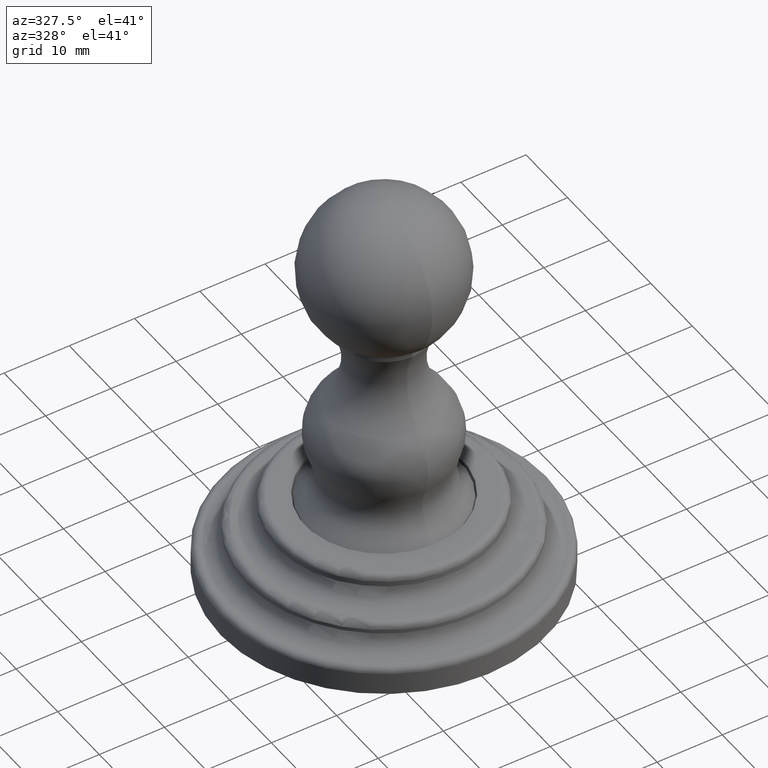
[diagram: clean part render]
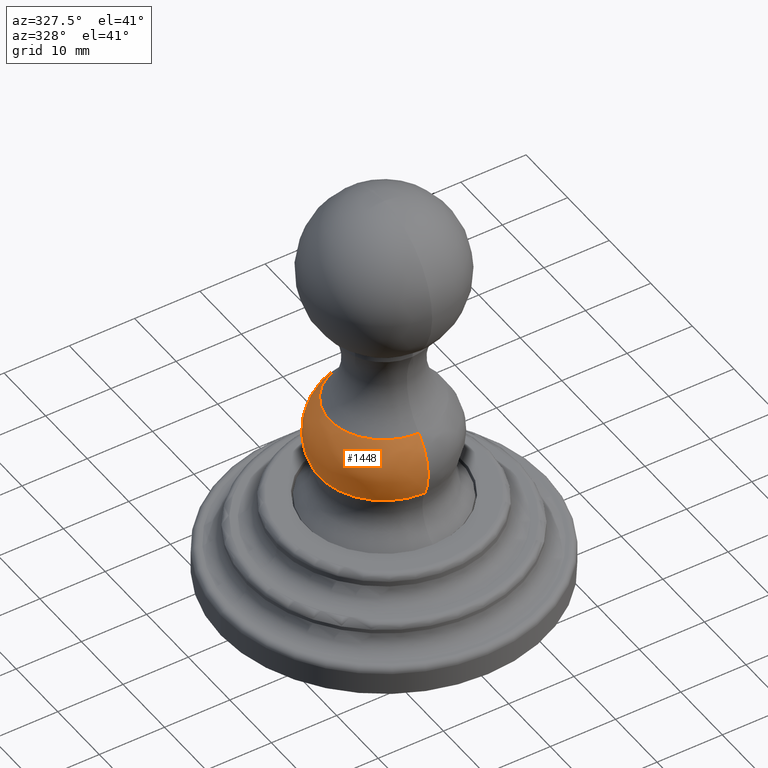
[diagram: same view with one face highlighted and labeled with its STEP entity id]
A machine part, auxiliary view. The second image highlights one B-rep face of the part: STEP entity #1448.
In plain terms, the highlighted face is a freeform B-spline surface patch.
Its self-contained STEP definition (entity closure, byte-faithful):
#572=CARTESIAN_POINT('',(0.E0,1.041910873487E-1,9.220305738123E-1));
#573=DIRECTION('',(1.E0,0.E0,0.E0));
#574=DIRECTION('',(0.E0,8.988088988744E-1,-4.383406931876E-1));
#575=AXIS2_PLACEMENT_3D('',#572,#573,#574);
#580=CARTESIAN_POINT('',(0.E0,-1.041910873487E-1,9.220305738123E-1));
#581=DIRECTION('',(-1.E0,0.E0,0.E0));
#582=DIRECTION('',(0.E0,-8.988088988744E-1,-4.383406931876E-1));
#583=AXIS2_PLACEMENT_3D('',#580,#581,#582);
#588=CARTESIAN_POINT('',(0.E0,0.E0,7.839705129660E-1));
#589=DIRECTION('',(0.E0,0.E0,1.E0));
#590=DIRECTION('',(0.E0,1.E0,0.E0));
#591=AXIS2_PLACEMENT_3D('',#588,#589,#590);
#612=CARTESIAN_POINT('',(0.E0,0.E0,1.142747808153E0));
#613=DIRECTION('',(0.E0,0.E0,1.E0));
#614=DIRECTION('',(0.E0,1.E0,0.E0));
#615=AXIS2_PLACEMENT_3D('',#612,#613,#614);
#743=CARTESIAN_POINT('',(0.E0,3.872805043167E-1,7.839705129660E-1));
#745=VERTEX_POINT('',#743);
#746=CARTESIAN_POINT('',(0.E0,3.288777599953E-1,1.142747808153E0));
#747=VERTEX_POINT('',#746);
#755=CARTESIAN_POINT('',(0.E0,-3.872805043167E-1,7.839705129660E-1));
#757=VERTEX_POINT('',#755);
#758=CARTESIAN_POINT('',(0.E0,-3.288777599953E-1,1.142747808153E0));
#759=VERTEX_POINT('',#758);
#1412=CARTESIAN_POINT('',(2.030517335353E-2,-3.227414884302E-1,
1.148208805471E0));
#1413=CARTESIAN_POINT('',(2.681549288007E-2,-4.262200540926E-1,
1.047729824582E0));
#1414=CARTESIAN_POINT('',(2.827208170864E-2,-4.493718705474E-1,
9.052233504963E-1));
#1415=CARTESIAN_POINT('',(2.409889000515E-2,-3.830408878742E-1,
7.770476561504E-1));
#1416=CARTESIAN_POINT('',(-1.783094859161E-1,-3.352372636298E-1,
1.148208805471E0));
#1417=CARTESIAN_POINT('',(-2.354797305486E-1,-4.427222707968E-1,
1.047729824582E0));
#1418=CARTESIAN_POINT('',(-2.482707370912E-1,-4.667704699736E-1,
9.052233504963E-1));
#1419=CARTESIAN_POINT('',(-2.116239351003E-1,-3.978713109798E-1,
7.770476561504E-1));
#1420=CARTESIAN_POINT('',(-3.233796042100E-1,-1.990073548255E-1,
1.148208805471E0));
#1421=CARTESIAN_POINT('',(-4.270627649059E-1,-2.628138264811E-1,
1.047729824582E0));
#1422=CARTESIAN_POINT('',(-4.502603565088E-1,-2.770895918142E-1,
9.052233504963E-1));
#1423=CARTESIAN_POINT('',(-3.837982260029E-1,-2.361888899275E-1,
7.770476561504E-1));
#1424=CARTESIAN_POINT('',(-3.233796042100E-1,0.E0,1.148208805471E0));
#1425=CARTESIAN_POINT('',(-4.270627649059E-1,0.E0,1.047729824582E0));
#1426=CARTESIAN_POINT('',(-4.502603565088E-1,0.E0,9.052233504963E-1));
#1427=CARTESIAN_POINT('',(-3.837982260029E-1,0.E0,7.770476561504E-1));
#1428=CARTESIAN_POINT('',(-3.233796042100E-1,1.990073548255E-1,
1.148208805471E0));
#1429=CARTESIAN_POINT('',(-4.270627649059E-1,2.628138264811E-1,
1.047729824582E0));
#1430=CARTESIAN_POINT('',(-4.502603565088E-1,2.770895918142E-1,
9.052233504963E-1));
#1431=CARTESIAN_POINT('',(-3.837982260029E-1,2.361888899275E-1,
7.770476561504E-1));
#1432=CARTESIAN_POINT('',(-1.783094859161E-1,3.352372636298E-1,
1.148208805471E0));
#1433=CARTESIAN_POINT('',(-2.354797305486E-1,4.427222707968E-1,
1.047729824582E0));
#1434=CARTESIAN_POINT('',(-2.482707370912E-1,4.667704699736E-1,
9.052233504963E-1));
#1435=CARTESIAN_POINT('',(-2.116239351003E-1,3.978713109798E-1,
7.770476561504E-1));
#1436=CARTESIAN_POINT('',(2.030517335353E-2,3.227414884302E-1,
1.148208805471E0));
#1437=CARTESIAN_POINT('',(2.681549288007E-2,4.262200540926E-1,
1.047729824582E0));
#1438=CARTESIAN_POINT('',(2.827208170864E-2,4.493718705474E-1,
9.052233504963E-1));
#1439=CARTESIAN_POINT('',(2.409889000515E-2,3.830408878742E-1,
7.770476561504E-1));
#1440=(BOUNDED_SURFACE()B_SPLINE_SURFACE(3,3,((#1412,#1413,#1414,#1415),(#1416,
#1417,#1418,#1419),(#1420,#1421,#1422,#1423),(#1424,#1425,#1426,#1427),(#1428,
#1429,#1430,#1431),(#1432,#1433,#1434,#1435),(#1436,#1437,#1438,#1439)),
.UNSPECIFIED.,.F.,.F.,.F.)B_SPLINE_SURFACE_WITH_KNOTS((4,3,4),(4,4),(0.E0,1.E0,
2.E0),(0.E0,1.E0),.UNSPECIFIED.)GEOMETRIC_REPRESENTATION_ITEM()RATIONAL_B_SPLINE_SURFACE(((1.317526105296E0,1.143841608227E0,1.143841608227E0,1.317526105296E0),(
1.040447823343E0,9.032895111105E-1,9.032895111105E-1,1.040447823343E0),(
1.040447823343E0,9.032895111105E-1,9.032895111105E-1,1.040447823343E0),(
1.317526105296E0,1.143841608227E0,1.143841608227E0,1.317526105296E0),(
1.040447823343E0,9.032895111105E-1,9.032895111105E-1,1.040447823343E0),(
1.040447823343E0,9.032895111105E-1,9.032895111105E-1,1.040447823343E0),(
1.317526105296E0,1.143841608227E0,1.143841608227E0,1.317526105296E0)))REPRESENTATION_ITEM('')SURFACE());
#1441=ORIENTED_EDGE('',*,*,#1390,.T.);
#1443=ORIENTED_EDGE('',*,*,#1442,.T.);
#1444=ORIENTED_EDGE('',*,*,#1393,.F.);
#1445=ORIENTED_EDGE('',*,*,#1316,.F.);
#1446=EDGE_LOOP('',(#1441,#1443,#1444,#1445));
#1447=FACE_OUTER_BOUND('',#1446,.F.);
#576=CIRCLE('',#575,3.149606299209E-1);
#584=CIRCLE('',#583,3.149606299209E-1);
#592=CIRCLE('',#591,3.872805043167E-1);
#616=CIRCLE('',#615,3.288777599953E-1);
#1316=EDGE_CURVE('',#745,#757,#592,.T.);
#1390=EDGE_CURVE('',#745,#747,#576,.T.);
#1393=EDGE_CURVE('',#757,#759,#584,.T.);
#1442=EDGE_CURVE('',#747,#759,#616,.T.);
#1448=ADVANCED_FACE('',(#1447),#1440,.T.);